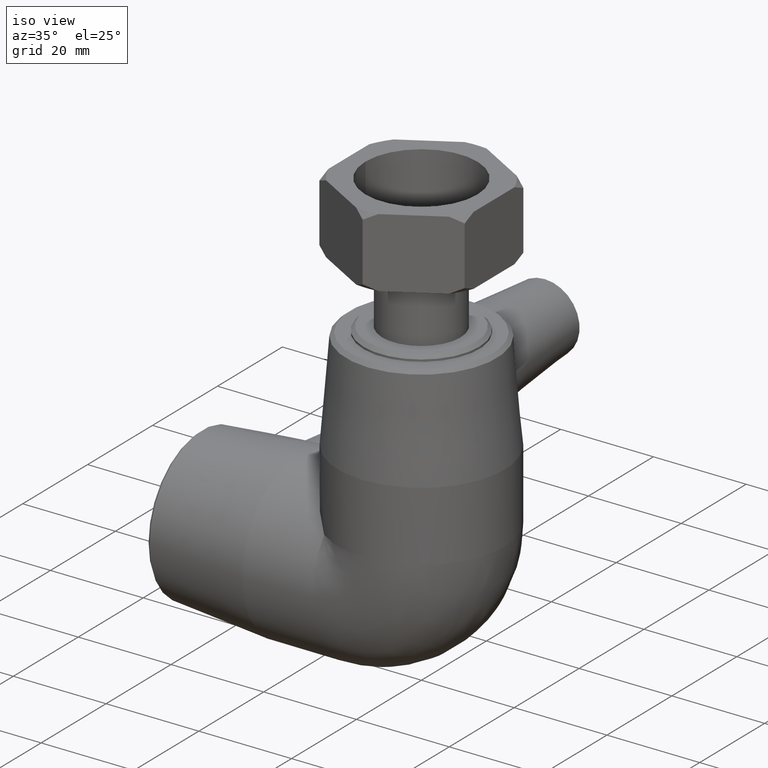
[diagram: clean part render]
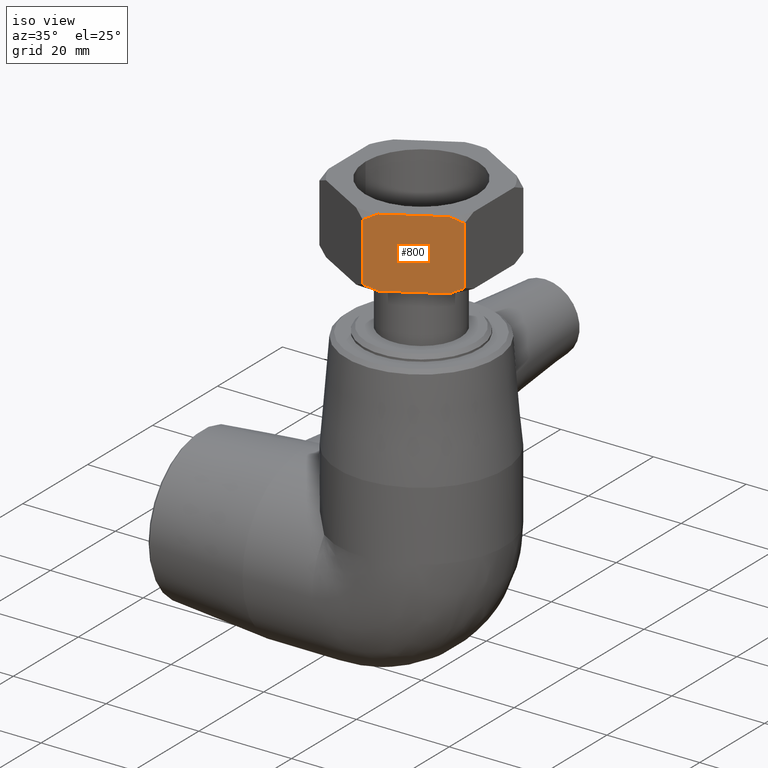
[diagram: same view with one face highlighted and labeled with its STEP entity id]
A machine part, iso view. The second image highlights one B-rep face of the part: STEP entity #800.
In plain terms, the highlighted planar face has unit normal (0.5, -0.866, -0).
Its self-contained STEP definition (entity closure, byte-faithful):
#21=LINE('',#1259,#40);
#22=LINE('',#1265,#41);
#23=LINE('',#1271,#42);
#24=LINE('',#1276,#43);
#40=VECTOR('',#999,12.5894436037698);
#41=VECTOR('',#1000,12.5883);
#42=VECTOR('',#1001,12.5894436037698);
#43=VECTOR('',#1002,12.5883);
#59=(
BOUNDED_CURVE()
B_SPLINE_CURVE(2,(#1255,#1256,#1257),.UNSPECIFIED.,.F.,.F.)
B_SPLINE_CURVE_WITH_KNOTS((3,3),(0.,0.300305349106752),.UNSPECIFIED.)
CURVE()
GEOMETRIC_REPRESENTATION_ITEM()
RATIONAL_B_SPLINE_CURVE((1.,1.00310458904762,1.))
REPRESENTATION_ITEM('')
);
#60=(
BOUNDED_CURVE()
B_SPLINE_CURVE(2,(#1261,#1262,#1263),.UNSPECIFIED.,.F.,.F.)
B_SPLINE_CURVE_WITH_KNOTS((3,3),(0.,0.300305349106752),.UNSPECIFIED.)
CURVE()
GEOMETRIC_REPRESENTATION_ITEM()
RATIONAL_B_SPLINE_CURVE((1.,1.00310458904746,1.))
REPRESENTATION_ITEM('')
);
#61=(
BOUNDED_CURVE()
B_SPLINE_CURVE(2,(#1267,#1268,#1269),.UNSPECIFIED.,.F.,.F.)
B_SPLINE_CURVE_WITH_KNOTS((3,3),(0.,0.300305349106749),.UNSPECIFIED.)
CURVE()
GEOMETRIC_REPRESENTATION_ITEM()
RATIONAL_B_SPLINE_CURVE((1.,1.00310458904731,1.))
REPRESENTATION_ITEM('')
);
#62=(
BOUNDED_CURVE()
B_SPLINE_CURVE(2,(#1273,#1274,#1275),.UNSPECIFIED.,.F.,.F.)
B_SPLINE_CURVE_WITH_KNOTS((3,3),(0.,0.300305349106749),.UNSPECIFIED.)
CURVE()
GEOMETRIC_REPRESENTATION_ITEM()
RATIONAL_B_SPLINE_CURVE((1.,1.00310458904731,1.))
REPRESENTATION_ITEM('')
);
#100=PLANE('',#870);
#169=FACE_OUTER_BOUND('',#235,.T.);
#235=EDGE_LOOP('',(#577,#578,#579,#580,#581,#582,#583,#584));
#392=VERTEX_POINT('',#1253);
#393=VERTEX_POINT('',#1254);
#394=VERTEX_POINT('',#1258);
#395=VERTEX_POINT('',#1260);
#396=VERTEX_POINT('',#1264);
#397=VERTEX_POINT('',#1266);
#398=VERTEX_POINT('',#1270);
#399=VERTEX_POINT('',#1272);
#472=EDGE_CURVE('',#392,#393,#59,.T.);
#473=EDGE_CURVE('',#394,#392,#21,.T.);
#474=EDGE_CURVE('',#395,#394,#60,.T.);
#475=EDGE_CURVE('',#396,#395,#22,.T.);
#476=EDGE_CURVE('',#397,#396,#61,.T.);
#477=EDGE_CURVE('',#398,#397,#23,.T.);
#478=EDGE_CURVE('',#399,#398,#62,.T.);
#479=EDGE_CURVE('',#393,#399,#24,.T.);
#577=ORIENTED_EDGE('',*,*,#472,.F.);
#578=ORIENTED_EDGE('',*,*,#473,.F.);
#579=ORIENTED_EDGE('',*,*,#474,.F.);
#580=ORIENTED_EDGE('',*,*,#475,.F.);
#581=ORIENTED_EDGE('',*,*,#476,.F.);
#582=ORIENTED_EDGE('',*,*,#477,.F.);
#583=ORIENTED_EDGE('',*,*,#478,.F.);
#584=ORIENTED_EDGE('',*,*,#479,.F.);
#800=ADVANCED_FACE('',(#169),#100,.T.);
#870=AXIS2_PLACEMENT_3D('',#1252,#997,#998);
#997=DIRECTION('center_axis',(0.500000000000001,-0.866025403784438,-1.38777878078145E-16));
#998=DIRECTION('ref_axis',(-0.866025403784438,-0.500000000000001,0.));
#999=DIRECTION('',(0.866025403784438,0.500000000000001,-2.40370335797945E-16));
#1000=DIRECTION('',(2.77555756156289E-16,0.,1.));
#1001=DIRECTION('',(-0.866025403784438,-0.500000000000001,2.40370335797945E-16));
#1002=DIRECTION('',(-2.77555756156289E-16,0.,-1.));
#1252=CARTESIAN_POINT('Origin',(15.664450997302,-9.04387499999998,78.));
#1253=CARTESIAN_POINT('',(13.2836144888391,-10.4184515990575,78.));
#1254=CARTESIAN_POINT('',(15.664450997302,-9.04387499999998,76.79415));
#1255=CARTESIAN_POINT('Ctrl Pts',(13.2836144888391,-10.4184515990575,78.));
#1256=CARTESIAN_POINT('Ctrl Pts',(14.4329838377522,-9.75486289606424,77.5051378960642));
#1257=CARTESIAN_POINT('Ctrl Pts',(15.664450997302,-9.04387499999999,76.79415));
#1258=CARTESIAN_POINT('',(2.38083650846297,-16.7131734009424,78.));
#1259=CARTESIAN_POINT('',(4.96543199797653,-15.2209564993255,78.));
#1260=CARTESIAN_POINT('',(4.32986979603811E-14,-18.08775,76.79415));
#1261=CARTESIAN_POINT('Ctrl Pts',(5.99627445397915E-14,-18.08775,76.79415));
#1262=CARTESIAN_POINT('Ctrl Pts',(1.23146715954985,-17.3767621039357,77.5051378960643));
#1263=CARTESIAN_POINT('Ctrl Pts',(2.38083650846297,-16.7131734009424,78.));
#1264=CARTESIAN_POINT('',(3.69943631284286E-14,-18.08775,64.20585));
#1265=CARTESIAN_POINT('',(4.21884749357559E-14,-18.08775,70.5));
#1266=CARTESIAN_POINT('',(2.38083650846295,-16.7131734009425,63.));
#1267=CARTESIAN_POINT('Ctrl Pts',(2.38083650846295,-16.7131734009425,63.));
#1268=CARTESIAN_POINT('Ctrl Pts',(1.23146715954982,-17.3767621039358,63.4948621039358));
#1269=CARTESIAN_POINT('Ctrl Pts',(4.77958850658519E-14,-18.08775,64.20585));
#1270=CARTESIAN_POINT('',(13.2836144888391,-10.4184515990575,63.));
#1271=CARTESIAN_POINT('',(8.58298199797653,-13.1323630330186,63.));
#1272=CARTESIAN_POINT('',(15.664450997302,-9.04387499999998,64.20585));
#1273=CARTESIAN_POINT('Ctrl Pts',(15.664450997302,-9.04387499999999,64.20585));
#1274=CARTESIAN_POINT('Ctrl Pts',(14.4329838377522,-9.75486289606424,63.4948621039358));
#1275=CARTESIAN_POINT('Ctrl Pts',(13.2836144888391,-10.4184515990575,63.));
#1276=CARTESIAN_POINT('',(15.664450997302,-9.04387499999998,70.5));